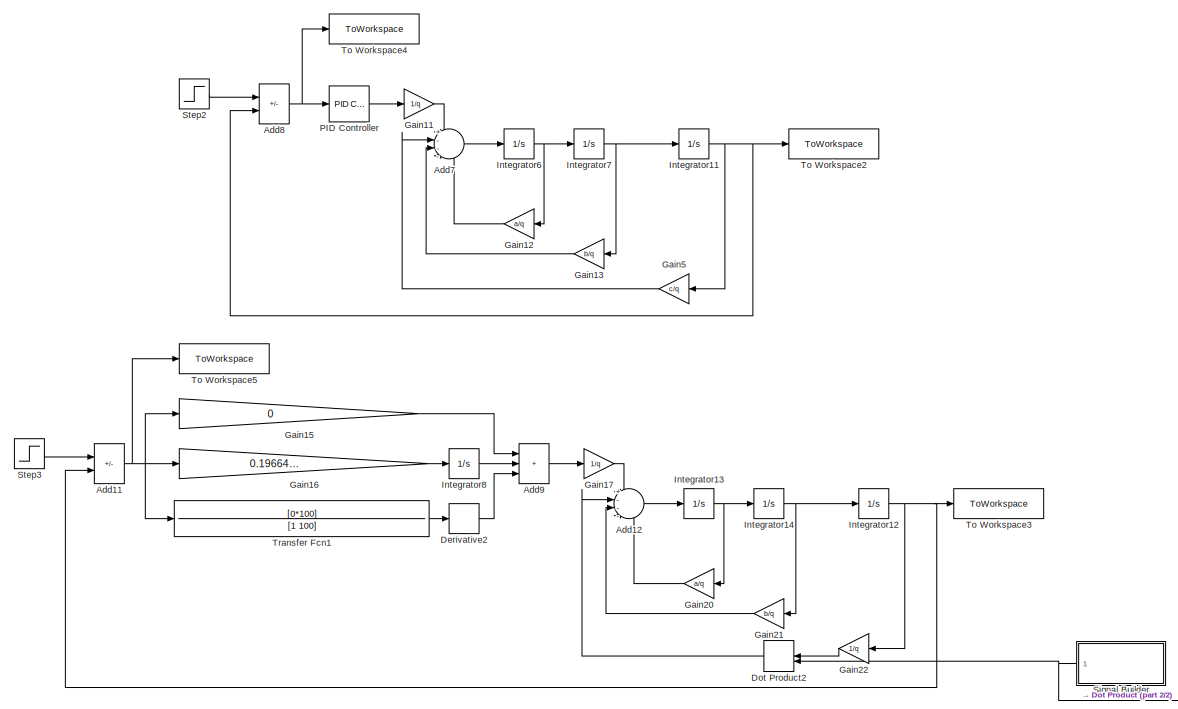
[diagram: root canvas - part 1/2, left side, full height]
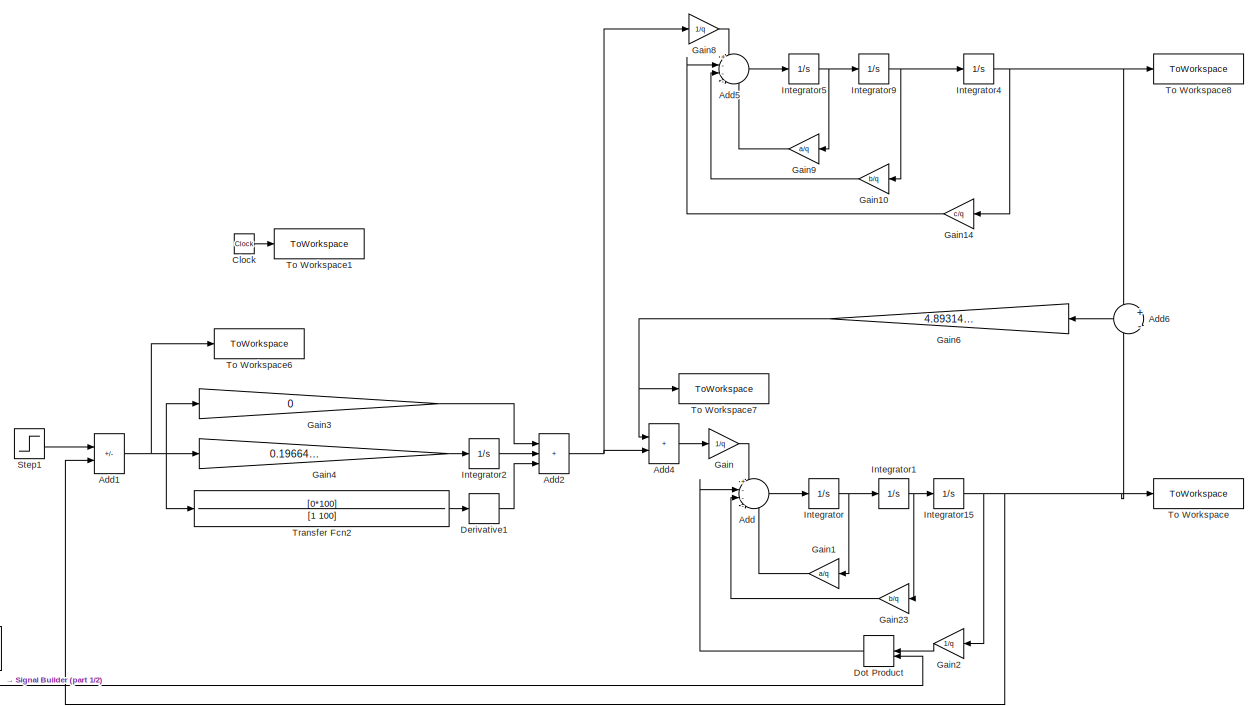
[diagram: root canvas - part 2/2, right side, full height]
MODEL slx_3ba0be3e497f
KIND model
CONFIG AbsTol = auto
CONFIG EnableMultiTasking = off
CONFIG FixedStep = auto
CONFIG MaxStep = auto
CONFIG MinStep = auto
CONFIG RelTol = 1e-3
CONFIG SampleTimeConstraint = Unconstrained
CONFIG SolverName = VariableStepAuto
CONFIG StartTime = 0.0
CONFIG StopTime = tk2
BLOCK [Sum] Add
  Inputs = +---
  Ports = [4, 1]
BLOCK [Sum] Add1
  IconShape = rectangular
  Inputs = +-
  Ports = [2, 1]
BLOCK [Sum] Add11
  IconShape = rectangular
  Inputs = +-
  Ports = [2, 1]
BLOCK [Sum] Add12
  Inputs = +---
  Ports = [4, 1]
BLOCK [Sum] Add2
  IconShape = rectangular
  Inputs = +++
  Ports = [3, 1]
BLOCK [Sum] Add4
  IconShape = rectangular
  Ports = [2, 1]
BLOCK [Sum] Add5
  Inputs = +---
  Ports = [4, 1]
BLOCK [Sum] Add6
  Inputs = +-
  NameLocation = top
  Ports = [2, 1]
BLOCK [Sum] Add7
  Inputs = +---
  Ports = [4, 1]
BLOCK [Sum] Add8
  IconShape = rectangular
  Inputs = +-
  Ports = [2, 1]
BLOCK [Sum] Add9
  IconShape = rectangular
  Inputs = +++
  Ports = [3, 1]
BLOCK [Clock] Clock
BLOCK [Derivative] Derivative1
BLOCK [Derivative] Derivative2
BLOCK [DotProduct] Dot Product
  NameLocation = top
  OutDataTypeStr = Inherit: Inherit via internal rule
BLOCK [DotProduct] Dot Product2
  NameLocation = top
  OutDataTypeStr = Inherit: Inherit via internal rule
BLOCK [Gain] Gain
  Gain = 1/q
BLOCK [Gain] Gain1
  Gain = a/q
  NameLocation = top
BLOCK [Gain] Gain10
  Gain = b/q
  NameLocation = top
BLOCK [Gain] Gain11
  Gain = 1/q
BLOCK [Gain] Gain12
  Gain = a/q
  NameLocation = top
BLOCK [Gain] Gain13
  Gain = b/q
  NameLocation = top
BLOCK [Gain] Gain14
  Gain = c/q
  NameLocation = top
BLOCK [Gain] Gain15
  Gain = 0
BLOCK [Gain] Gain16
  Gain = 0.196641099701913
BLOCK [Gain] Gain17
  Gain = 1/q
BLOCK [Gain] Gain2
  Gain = 1/q
  NameLocation = top
BLOCK [Gain] Gain20
  Gain = a/q
  NameLocation = top
BLOCK [Gain] Gain21
  Gain = b/q
  NameLocation = top
BLOCK [Gain] Gain22
  Gain = 1/q
  NameLocation = top
BLOCK [Gain] Gain23
  Gain = b/q
  NameLocation = top
BLOCK [Gain] Gain3
  Gain = 0
BLOCK [Gain] Gain4
  Gain = 0.196641099701913
BLOCK [Gain] Gain5
  Gain = c/q
  NameLocation = top
BLOCK [Gain] Gain6
  Gain = 4.89314455477096
  NameLocation = top
BLOCK [Gain] Gain8
  Gain = 1/q
BLOCK [Gain] Gain9
  Gain = a/q
  NameLocation = top
BLOCK [Integrator] Integrator
  Ports = [1, 1]
BLOCK [Integrator] Integrator1
  Ports = [1, 1]
BLOCK [Integrator] Integrator11
  Ports = [1, 1]
BLOCK [Integrator] Integrator12
  Ports = [1, 1]
BLOCK [Integrator] Integrator13
  Ports = [1, 1]
BLOCK [Integrator] Integrator14
  Ports = [1, 1]
BLOCK [Integrator] Integrator15
  Ports = [1, 1]
BLOCK [Integrator] Integrator2
  Ports = [1, 1]
BLOCK [Integrator] Integrator4
  Ports = [1, 1]
BLOCK [Integrator] Integrator5
  Ports = [1, 1]
BLOCK [Integrator] Integrator6
  Ports = [1, 1]
BLOCK [Integrator] Integrator7
  Ports = [1, 1]
BLOCK [Integrator] Integrator8
  Ports = [1, 1]
BLOCK [Integrator] Integrator9
  Ports = [1, 1]
BLOCK [Reference] PID Controller  REF=pid_lib/PID Controller
  Ports = [1, 1]
  SourceBlock = pid_lib/PID Controller
  SourceProductBaseCode = SL
  SourceType = PID 1dof
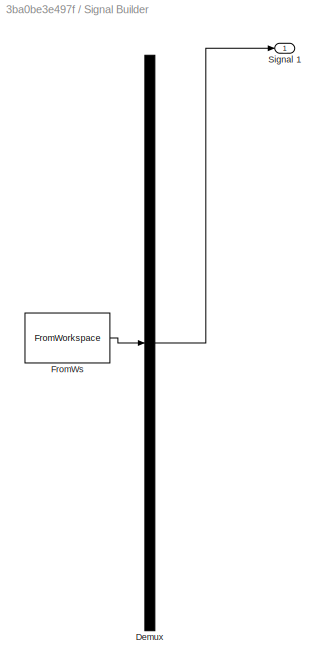
BLOCK [SubSystem] Signal Builder
  ClipboardFcn = sigbuilder_block('clipboard');
  CloseFcn = sigbuilder_block('close');
  ContinueFcn = sigbuilder_block('continue');
  CopyFcn = sigbuilder_block('copy');
  DeleteFcn = sigbuilder_block('delete');
  LoadFcn = sigbuilder_block('load');
  MaskHideContents = on
  ModelCloseFcn = sigbuilder_block('modelClose');
  NameChangeFcn = sigbuilder_block('namechange');
  NameLocation = top
  OpenFcn = sigbuilder_block('open',[6 30 1012.5 447.75 ]);
  PauseFcn = sigbuilder_block('pause');
  Ports = [0, 1]
  PreSaveFcn = sigbuilder_block('preSave');
  RequestExecContextInheritance = off
  StartFcn = sigbuilder_block('start');
  StopFcn = sigbuilder_block('stop');
  Tag = STV Subsys
BLOCK [Demux] Signal Builder/Demux
  DisplayOption = none
  Outputs = 1
  Ports = [1, 1]
  Tag = STV Demux
BLOCK [FromWorkspace] Signal Builder/FromWs
  OutputAfterFinalValue = Holding final value
  Tag = STV FromWs
  VariableName = tuvar
BLOCK [Outport] Signal Builder/Signal 1
  Tag = STV Outport
BLOCK [Step] Step1
  After = y
  Before = y0
  SampleTime = 0
  Time = steptime
BLOCK [Step] Step2
  After = y
  Before = y0
  SampleTime = 0
  Time = steptime
BLOCK [Step] Step3
  After = y
  Before = y0
  SampleTime = 0
  Time = steptime
BLOCK [ToWorkspace] To Workspace
  FixptAsFi = on
  MaxDataPoints = inf
  Ports = [1]
  SampleTime = -1
  VariableName = y2
BLOCK [ToWorkspace] To Workspace1
  FixptAsFi = on
  MaxDataPoints = inf
  Ports = [1]
  SampleTime = -1
  VariableName = t
BLOCK [ToWorkspace] To Workspace2
  FixptAsFi = on
  MaxDataPoints = inf
  Ports = [1]
  SampleTime = -1
  VariableName = y
BLOCK [ToWorkspace] To Workspace3
  FixptAsFi = on
  MaxDataPoints = inf
  Ports = [1]
  SampleTime = -1
  VariableName = y1
BLOCK [ToWorkspace] To Workspace4
  FixptAsFi = on
  MaxDataPoints = inf
  Ports = [1]
  SampleTime = -1
  VariableName = e
BLOCK [ToWorkspace] To Workspace5
  FixptAsFi = on
  MaxDataPoints = inf
  Ports = [1]
  SampleTime = -1
  VariableName = e1
BLOCK [ToWorkspace] To Workspace6
  FixptAsFi = on
  MaxDataPoints = inf
  Ports = [1]
  SampleTime = -1
  VariableName = e2
BLOCK [ToWorkspace] To Workspace7
  FixptAsFi = on
  MaxDataPoints = inf
  Ports = [1]
  SampleTime = -1
  VariableName = reg2
BLOCK [ToWorkspace] To Workspace8
  FixptAsFi = on
  MaxDataPoints = inf
  Ports = [1]
  SampleTime = -1
  VariableName = y3
BLOCK [TransferFcn] Transfer Fcn1
  Denominator = [1 100]
  Numerator = [0*100]
BLOCK [TransferFcn] Transfer Fcn2
  Denominator = [1 100]
  Numerator = [0*100]
NET Add11:1 -> Gain15:1, Gain16:1, To Workspace5:1, Transfer Fcn1:1
LINE Add12:1 -> Integrator13:1
NET Add1:1 -> Gain3:1, Gain4:1, To Workspace6:1, Transfer Fcn2:1
NET Add2:1 -> Add4:2, Gain8:1
LINE Add4:1 -> Gain:1
LINE Add5:1 -> Integrator5:1
LINE Add6:1 -> Gain6:1
LINE Add7:1 -> Integrator6:1
NET Add8:1 -> PID Controller:1, To Workspace4:1
LINE Add9:1 -> Gain17:1
LINE Add:1 -> Integrator:1
LINE Clock:1 -> To Workspace1:1
LINE Derivative1:1 -> Add2:3
LINE Derivative2:1 -> Add9:3
LINE Dot Product2:1 -> Add12:2
LINE Dot Product:1 -> Add:2
LINE Gain10:1 -> Add5:3
LINE Gain11:1 -> Add7:1
LINE Gain12:1 -> Add7:4
LINE Gain13:1 -> Add7:3
LINE Gain14:1 -> Add5:2
LINE Gain15:1 -> Add9:1
LINE Gain16:1 -> Integrator8:1
LINE Gain17:1 -> Add12:1
LINE Gain1:1 -> Add:4
LINE Gain20:1 -> Add12:4
LINE Gain21:1 -> Add12:3
LINE Gain22:1 -> Dot Product2:1
LINE Gain23:1 -> Add:3
LINE Gain2:1 -> Dot Product:1
LINE Gain3:1 -> Add2:1
LINE Gain4:1 -> Integrator2:1
LINE Gain5:1 -> Add7:2
NET Gain6:1 -> Add4:1, To Workspace7:1
LINE Gain8:1 -> Add5:1
LINE Gain9:1 -> Add5:4
LINE Gain:1 -> Add:1
NET Integrator11:1 -> Add8:2, Gain5:1, To Workspace2:1
NET Integrator12:1 -> Add11:2, Gain22:1, To Workspace3:1
NET Integrator13:1 -> Gain20:1, Integrator14:1
NET Integrator14:1 -> Gain21:1, Integrator12:1
NET Integrator15:1 -> Add1:2, Add6:2, Gain2:1, To Workspace:1
NET Integrator1:1 -> Gain23:1, Integrator15:1
LINE Integrator2:1 -> Add2:2
NET Integrator4:1 -> Add6:1, Gain14:1, To Workspace8:1
NET Integrator5:1 -> Gain9:1, Integrator9:1
NET Integrator6:1 -> Gain12:1, Integrator7:1
NET Integrator7:1 -> Gain13:1, Integrator11:1
LINE Integrator8:1 -> Add9:2
NET Integrator9:1 -> Gain10:1, Integrator4:1
NET Integrator:1 -> Gain1:1, Integrator1:1
LINE PID Controller:1 -> Gain11:1
NET Signal Builder:1 -> Dot Product2:2, Dot Product:2
LINE Step1:1 -> Add1:1
LINE Step2:1 -> Add8:1
LINE Step3:1 -> Add11:1
LINE Transfer Fcn1:1 -> Derivative2:1
LINE Transfer Fcn2:1 -> Derivative1:1
note: NET lines group one-source signal fan-out (src -> all destinations, sorted); 1:1 wires keep LINE
